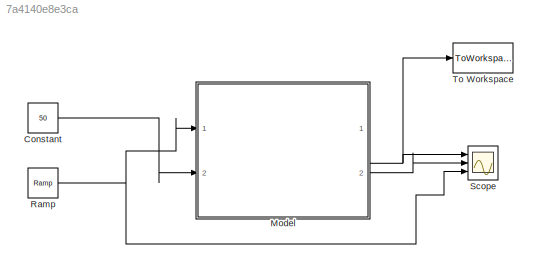
MODEL slx_7a4140e8e3ca
KIND model
BLOCK [Constant] Constant
  Value = 50
BLOCK [ModelReference] Model
  CopyOfModelName = tyreModel.slx
  DefaultDataLogging = on
  ModelNameDialog = tyreModel.slx
  ModelReferenceVersion = 1.26
  Ports = [2, 2]
BLOCK [Reference] Ramp  REF=simulink/Sources/Ramp
  Ports = [0, 1]
  SourceBlock = simulink/Sources/Ramp
  SourceType = Ramp
  VectorParams1D = on
  X0 = -100
  slope = 1
  start = 0
BLOCK [Scope] Scope
  DataFormat = StructureWithTime
  Floating = off
  NumInputPorts = 3
  Ports = [3]
  SampleTime = 0
  ShowLegends = off
  YMax = 5~5~5
  YMin = -5~-5~-5
  ZoomMode = xonly
BLOCK [ToWorkspace] To Workspace
  MaxDataPoints = inf
  Ports = [1]
  SampleTime = -1
  SaveFormat = Timeseries
  VariableName = simout
LINE Constant:1 -> Model:2
NET Model:1 -> Scope:1, To Workspace:1
LINE Model:2 -> Scope:2
NET Ramp:1 -> Model:1, Scope:3
note: NET lines group one-source signal fan-out (src -> all destinations, sorted); 1:1 wires keep LINE
